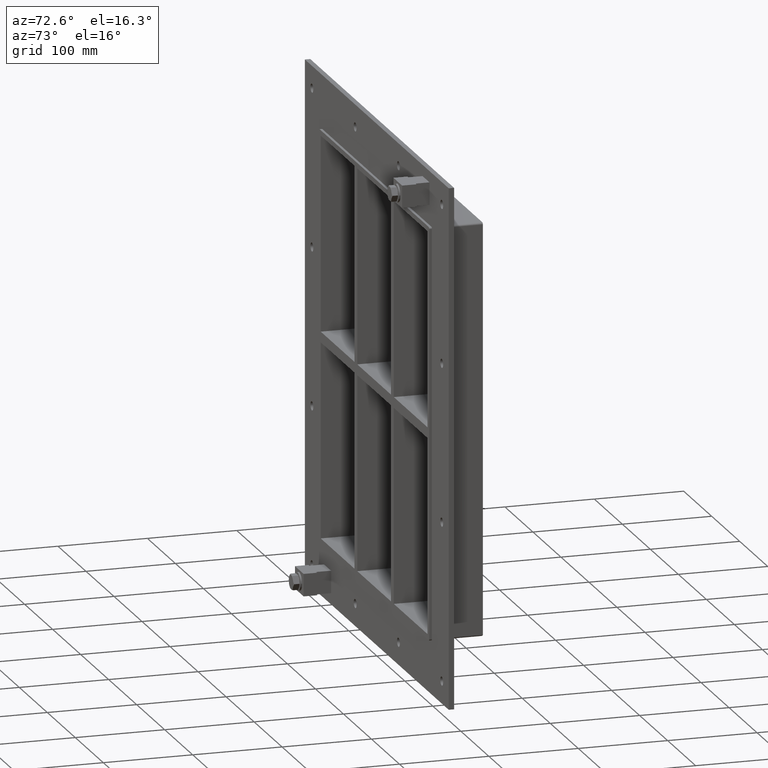
[diagram: clean part render]
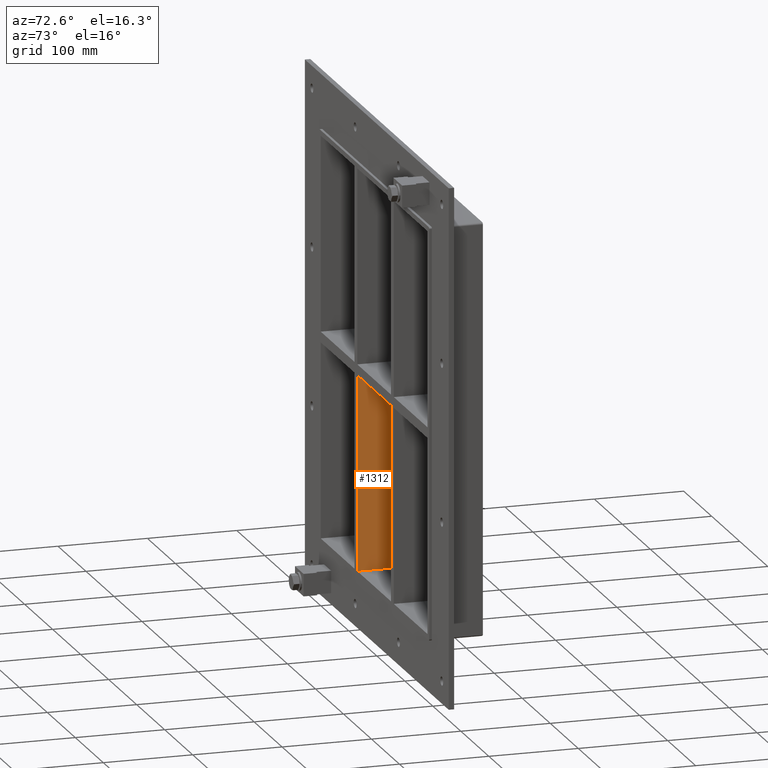
[diagram: same view with one face highlighted and labeled with its STEP entity id]
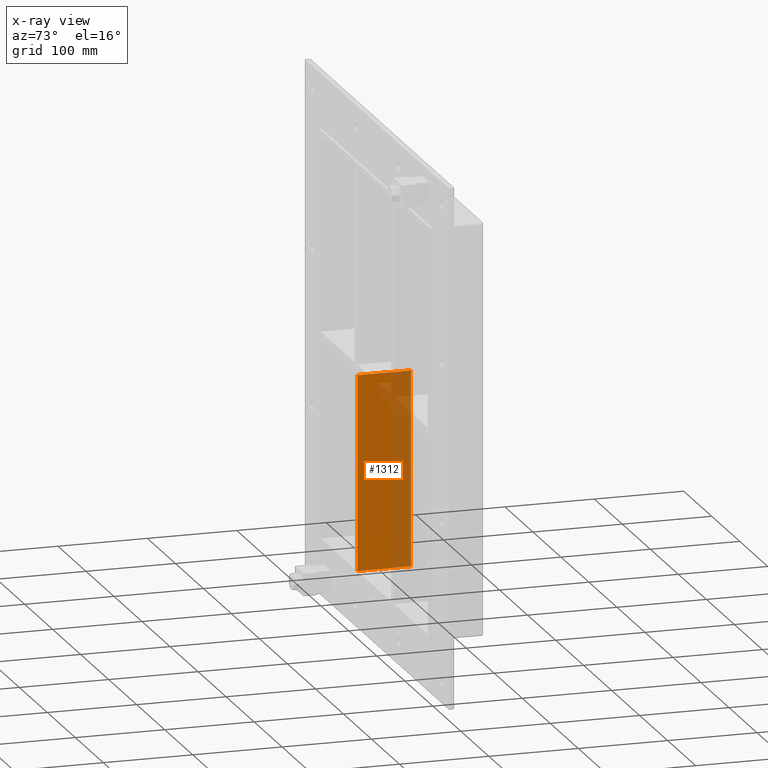
[diagram: x-ray of the same camera — body ghosted, the highlighted face saturated]
A machine part, auxiliary view. The second image highlights one B-rep face of the part: STEP entity #1312.
The next image is the same camera in x-ray: the body ghosted, the highlighted face saturated — about 39% of this face is hidden behind the body in this view.
In plain terms, the highlighted planar face has unit normal (1, 0, 0).
Its self-contained STEP definition (entity closure, byte-faithful):
#570=CARTESIAN_POINT('',(-60.249999999996362,57.0,-223.99999999998164));
#571=VERTEX_POINT('',#570);
#578=CARTESIAN_POINT('',(-60.249999999996362,-3.0,-223.9999999999817));
#579=VERTEX_POINT('',#578);
#580=CARTESIAN_POINT('',(-60.249999999996362,57.000000000000007,-224.0));
#581=DIRECTION('',(0.0,-1.0,0.0));
#582=VECTOR('',#581,60.000000000000007);
#583=LINE('',#580,#582);
#584=EDGE_CURVE('',#571,#579,#583,.T.);
#702=CARTESIAN_POINT('',(-60.249999999996362,-3.0,-6.00000000001136));
#703=VERTEX_POINT('',#702);
#704=CARTESIAN_POINT('',(-60.249999999996362,-3.0,-6.00000000001134));
#705=DIRECTION('',(0.0,0.0,-1.0));
#706=VECTOR('',#705,217.9999999999703);
#707=LINE('',#704,#706);
#708=EDGE_CURVE('',#703,#579,#707,.T.);
#959=CARTESIAN_POINT('',(-60.249999999996362,57.0,-6.00000000001136));
#960=VERTEX_POINT('',#959);
#961=CARTESIAN_POINT('',(-60.249999999996362,57.0,-6.000000000011344));
#962=DIRECTION('',(0.0,-1.0,0.0));
#963=VECTOR('',#962,60.0);
#964=LINE('',#961,#963);
#965=EDGE_CURVE('',#960,#703,#964,.T.);
#1191=CARTESIAN_POINT('',(-60.249999999996362,57.0,-6.00000000001134));
#1192=DIRECTION('',(0.0,0.0,-1.0));
#1193=VECTOR('',#1192,217.9999999999703);
#1194=LINE('',#1191,#1193);
#1195=EDGE_CURVE('',#960,#571,#1194,.T.);
#1301=CARTESIAN_POINT('',(-60.249999999996362,-3.0,224.0));
#1302=DIRECTION('',(1.0,0.0,0.0));
#1303=DIRECTION('',(0.0,0.0,-1.0));
#1304=AXIS2_PLACEMENT_3D('',#1301,#1302,#1303);
#1305=PLANE('',#1304);
#1306=ORIENTED_EDGE('',*,*,#965,.T.);
#1307=ORIENTED_EDGE('',*,*,#708,.T.);
#1308=ORIENTED_EDGE('',*,*,#584,.F.);
#1309=ORIENTED_EDGE('',*,*,#1195,.F.);
#1310=EDGE_LOOP('',(#1306,#1307,#1308,#1309));
#1311=FACE_OUTER_BOUND('',#1310,.T.);
#1312=ADVANCED_FACE('',(#1311),#1305,.T.);